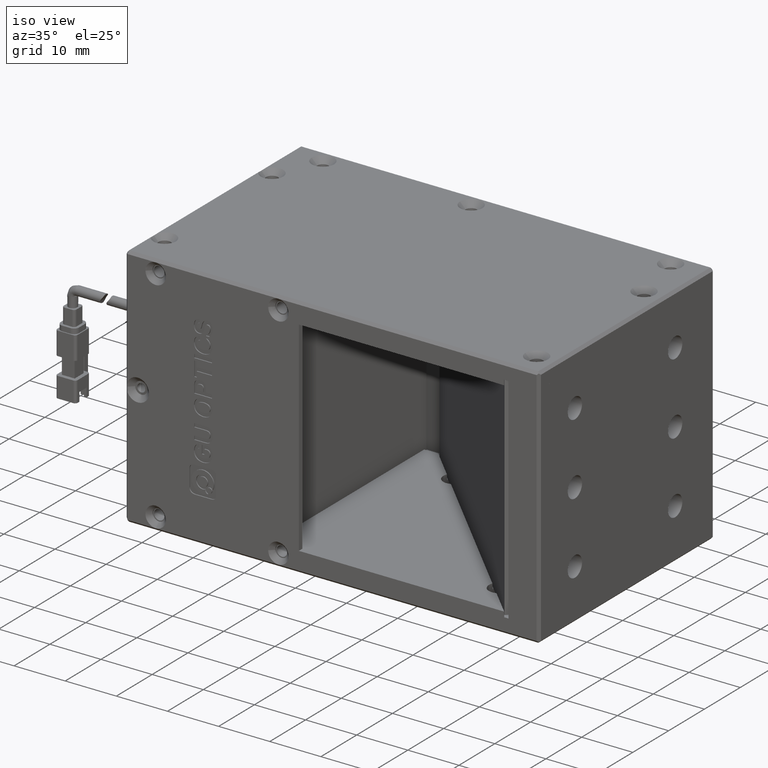
[diagram: clean part render]
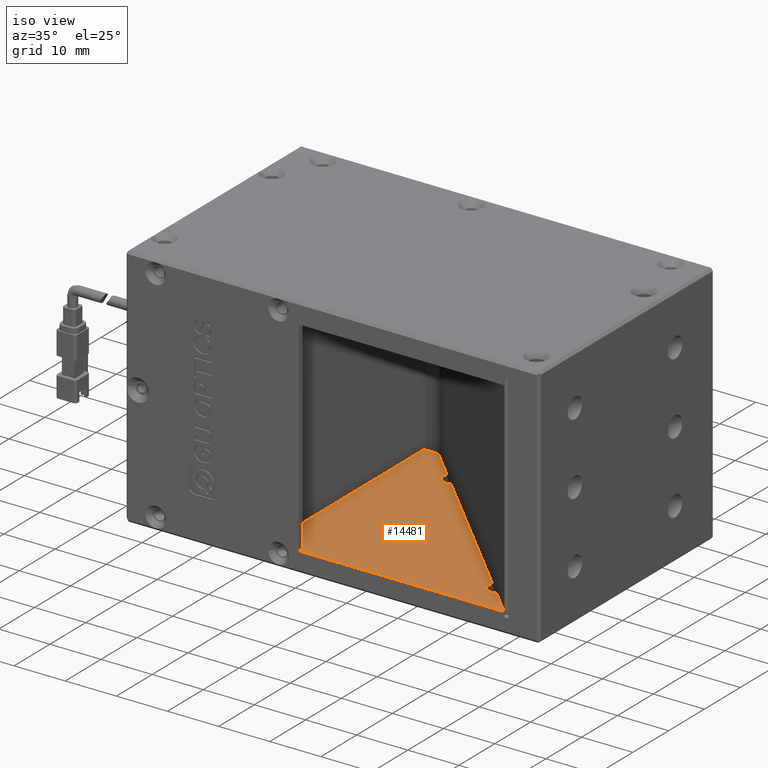
[diagram: same view with one face highlighted and labeled with its STEP entity id]
A machine part, iso view. The second image highlights one B-rep face of the part: STEP entity #14481.
In plain terms, the highlighted planar face has unit normal (0, 0, 1).
Its self-contained STEP definition (entity closure, byte-faithful):
#31 = VERTEX_POINT ( 'NONE', #23974 ) ;
#471 = CARTESIAN_POINT ( 'NONE',  ( -13.37937951257048200, 34.74734783202031700, -36.00000000000501600 ) ) ;
#594 = DIRECTION ( 'NONE',  ( 1.000000000000000000, 0.0000000000000000000, 0.0000000000000000000 ) ) ;
#1209 = DIRECTION ( 'NONE',  ( 1.000000000000000000, 0.0000000000000000000, 0.0000000000000000000 ) ) ;
#1368 = DIRECTION ( 'NONE',  ( 0.0000000000000000000, -0.0000000000000000000, 1.000000000000000000 ) ) ;
#1618 = AXIS2_PLACEMENT_3D ( 'NONE', #5779, #21531, #8021 ) ;
#2473 = EDGE_CURVE ( 'NONE', #31, #20307, #26004, .T. ) ;
#3189 = EDGE_CURVE ( 'NONE', #9928, #22151, #15767, .T. ) ;
#3231 = EDGE_CURVE ( 'NONE', #10380, #20307, #12084, .T. ) ;
#3276 = DIRECTION ( 'NONE',  ( -1.000000000000000000, -0.0000000000000000000, -0.0000000000000000000 ) ) ;
#4540 = CARTESIAN_POINT ( 'NONE',  ( 27.10521329404999600, -5.737244974597497400, -36.00000000000501600 ) ) ;
#5288 = EDGE_CURVE ( 'NONE', #26017, #10380, #8196, .T. ) ;
#5416 = CARTESIAN_POINT ( 'NONE',  ( -14.76014069702499900, 34.74734783202000400, -36.00000000000501600 ) ) ;
#5458 = EDGE_CURVE ( 'NONE', #23581, #5538, #29014, .T. ) ;
#5538 = VERTEX_POINT ( 'NONE', #17302 ) ;
#5615 = VECTOR ( 'NONE', #26086, 1000.000000000000000 ) ;
#5779 = CARTESIAN_POINT ( 'NONE',  ( 23.80912512634000000, -1.380496635109999900, -36.00000000000481700 ) ) ;
#5968 = VECTOR ( 'NONE', #23247, 1000.000000000000000 ) ;
#6107 = VECTOR ( 'NONE', #20294, 1000.000000000000100 ) ;
#7216 = CARTESIAN_POINT ( 'NONE',  ( -10.55504017108500000, 31.92300849053499700, -36.00000000000501600 ) ) ;
#7471 = DIRECTION ( 'NONE',  ( 0.0000000000000000000, -0.0000000000000000000, 1.000000000000000000 ) ) ;
#7500 = ORIENTED_EDGE ( 'NONE', *, *, #9625, .F. ) ;
#7581 = AXIS2_PLACEMENT_3D ( 'NONE', #28165, #14677, #1209 ) ;
#8021 = DIRECTION ( 'NONE',  ( 1.000000000000000000, 0.0000000000000000000, 0.0000000000000000000 ) ) ;
#8070 = EDGE_CURVE ( 'NONE', #17552, #9928, #17299, .T. ) ;
#8196 = LINE ( 'NONE', #16523, #19482 ) ;
#8851 = DIRECTION ( 'NONE',  ( -0.0000000000000000000, -1.000000000000000000, -0.0000000000000000000 ) ) ;
#9231 = EDGE_LOOP ( 'NONE', ( #14860, #28542, #15130, #25471, #7500, #11623, #26703, #14700, #28738, #12173, #15900, #24968 ) ) ;
#9338 = VERTEX_POINT ( 'NONE', #17686 ) ;
#9625 = EDGE_CURVE ( 'NONE', #5538, #14004, #20250, .T. ) ;
#9654 = VECTOR ( 'NONE', #20716, 1000.000000000000100 ) ;
#9928 = VERTEX_POINT ( 'NONE', #11019 ) ;
#10380 = VERTEX_POINT ( 'NONE', #21705 ) ;
#10528 = VERTEX_POINT ( 'NONE', #13263 ) ;
#10751 = VECTOR ( 'NONE', #28458, 1000.000000000000000 ) ;
#10905 = LINE ( 'NONE', #12610, #5615 ) ;
#11019 = CARTESIAN_POINT ( 'NONE',  ( -16.14090188147999400, 34.74734783202000400, -36.00000000000501600 ) ) ;
#11292 = VECTOR ( 'NONE', #3276, 1000.000000000000000 ) ;
#11623 = ORIENTED_EDGE ( 'NONE', *, *, #5458, .F. ) ;
#11948 = LINE ( 'NONE', #14216, #5968 ) ;
#11999 = CIRCLE ( 'NONE', #27626, 2.000000000000001800 ) ;
#12084 = LINE ( 'NONE', #4540, #6107 ) ;
#12173 = ORIENTED_EDGE ( 'NONE', *, *, #18849, .T. ) ;
#12259 = CARTESIAN_POINT ( 'NONE',  ( -16.14090188148000100, -7.252652167982004600, -36.00000000000500900 ) ) ;
#12610 = CARTESIAN_POINT ( 'NONE',  ( -27.54090188148199700, -7.252652167982001100, -36.00000000000500200 ) ) ;
#13263 = CARTESIAN_POINT ( 'NONE',  ( 21.96778398023516100, -0.5998156607846565300, -36.00000000000481700 ) ) ;
#14004 = VERTEX_POINT ( 'NONE', #16869 ) ;
#14052 = DIRECTION ( 'NONE',  ( 0.0000000000000000000, -0.0000000000000000000, 1.000000000000000000 ) ) ;
#14216 = CARTESIAN_POINT ( 'NONE',  ( 21.96778398023754200, -0.5998156607815978700, -36.00000000000000700 ) ) ;
#14481 = ADVANCED_FACE ( 'NONE', ( #24787 ), #16840, .T. ) ;
#14677 = DIRECTION ( 'NONE',  ( 0.0000000000000000000, 0.0000000000000000000, 1.000000000000000000 ) ) ;
#14700 = ORIENTED_EDGE ( 'NONE', *, *, #8070, .T. ) ;
#14841 = CARTESIAN_POINT ( 'NONE',  ( -5.889359683497001900, 28.31798817472999700, -36.00000000000481700 ) ) ;
#14860 = ORIENTED_EDGE ( 'NONE', *, *, #3231, .T. ) ;
#14921 = EDGE_CURVE ( 'NONE', #10528, #31, #11999, .T. ) ;
#15130 = ORIENTED_EDGE ( 'NONE', *, *, #14921, .F. ) ;
#15652 = LINE ( 'NONE', #7216, #9654 ) ;
#15767 = LINE ( 'NONE', #22368, #27049 ) ;
#15900 = ORIENTED_EDGE ( 'NONE', *, *, #25551, .T. ) ;
#16041 = EDGE_CURVE ( 'NONE', #10528, #14004, #11948, .T. ) ;
#16523 = CARTESIAN_POINT ( 'NONE',  ( 12.70909811852000200, -8.252652167982001100, -36.00000000000480300 ) ) ;
#16840 = PLANE ( 'NONE',  #7581 ) ;
#16869 = CARTESIAN_POINT ( 'NONE',  ( -5.108678709171226000, 26.47664702862898200, -36.00000000000240900 ) ) ;
#17109 = DIRECTION ( 'NONE',  ( 1.000000000000000000, 0.0000000000000000000, 0.0000000000000000000 ) ) ;
#17299 = LINE ( 'NONE', #5416, #11292 ) ;
#17302 = CARTESIAN_POINT ( 'NONE',  ( -7.889359683497003700, 28.31798817472999700, -36.00000000000481700 ) ) ;
#17552 = VERTEX_POINT ( 'NONE', #471 ) ;
#17686 = CARTESIAN_POINT ( 'NONE',  ( -10.54090188148275200, -7.252652167981970000, -36.00000000000277800 ) ) ;
#18794 = DIRECTION ( 'NONE',  ( 1.000000000000000000, -0.0000000000000000000, -0.0000000000000000000 ) ) ;
#18849 = EDGE_CURVE ( 'NONE', #22151, #9338, #10905, .T. ) ;
#19482 = VECTOR ( 'NONE', #18794, 1000.000000000000000 ) ;
#20250 = CIRCLE ( 'NONE', #28895, 2.000000000000002700 ) ;
#20294 = DIRECTION ( 'NONE',  ( -0.7071067811864804000, 0.7071067811866146300, -0.0000000000000000000 ) ) ;
#20307 = VERTEX_POINT ( 'NONE', #24860 ) ;
#20716 = DIRECTION ( 'NONE',  ( -0.7071067811865479100, 0.7071067811865470200, -0.0000000000000000000 ) ) ;
#20972 = CARTESIAN_POINT ( 'NONE',  ( -5.889359683497001900, 28.31798817472999700, -36.00000000000481700 ) ) ;
#21531 = DIRECTION ( 'NONE',  ( 0.0000000000000000000, -0.0000000000000000000, 1.000000000000000000 ) ) ;
#21658 = CARTESIAN_POINT ( 'NONE',  ( -10.54090188148040900, 13.24734783201900300, -36.00000000000000700 ) ) ;
#21705 = CARTESIAN_POINT ( 'NONE',  ( 29.62062048743483100, -8.252652167982164500, -36.00000000000487400 ) ) ;
#22151 = VERTEX_POINT ( 'NONE', #12259 ) ;
#22368 = CARTESIAN_POINT ( 'NONE',  ( -16.14090188148000100, 13.74734783201899900, -36.00000000000501600 ) ) ;
#22649 = EDGE_CURVE ( 'NONE', #23581, #17552, #15652, .T. ) ;
#23229 = DIRECTION ( 'NONE',  ( 1.000000000000000000, 0.0000000000000000000, 0.0000000000000000000 ) ) ;
#23247 = DIRECTION ( 'NONE',  ( -0.7071067811865097100, 0.7071067811865854300, 0.0000000000000000000 ) ) ;
#23558 = AXIS2_PLACEMENT_3D ( 'NONE', #14841, #1368, #17109 ) ;
#23581 = VERTEX_POINT ( 'NONE', #24912 ) ;
#23974 = CARTESIAN_POINT ( 'NONE',  ( 21.80912512634000000, -1.380496635109999600, -36.00000000000481700 ) ) ;
#24787 = FACE_OUTER_BOUND ( 'NONE', #9231, .T. ) ;
#24860 = CARTESIAN_POINT ( 'NONE',  ( 24.58980610066422700, -3.221837781211990500, -36.00000000000481700 ) ) ;
#24912 = CARTESIAN_POINT ( 'NONE',  ( -7.730700829600386300, 29.09866914905038400, -36.00000000000491700 ) ) ;
#24968 = ORIENTED_EDGE ( 'NONE', *, *, #5288, .T. ) ;
#25471 = ORIENTED_EDGE ( 'NONE', *, *, #16041, .T. ) ;
#25551 = EDGE_CURVE ( 'NONE', #9338, #26017, #28024, .T. ) ;
#25856 = CARTESIAN_POINT ( 'NONE',  ( -10.54090188148013500, -8.252652167982002900, -36.00000000000320500 ) ) ;
#26004 = CIRCLE ( 'NONE', #1618, 2.000000000000001800 ) ;
#26017 = VERTEX_POINT ( 'NONE', #25856 ) ;
#26086 = DIRECTION ( 'NONE',  ( 1.000000000000000000, -0.0000000000000000000, -0.0000000000000000000 ) ) ;
#26703 = ORIENTED_EDGE ( 'NONE', *, *, #22649, .T. ) ;
#27049 = VECTOR ( 'NONE', #8851, 1000.000000000000000 ) ;
#27555 = CARTESIAN_POINT ( 'NONE',  ( 23.80912512634000000, -1.380496635109999900, -36.00000000000481700 ) ) ;
#27626 = AXIS2_PLACEMENT_3D ( 'NONE', #27555, #14052, #594 ) ;
#28024 = LINE ( 'NONE', #21658, #10751 ) ;
#28165 = CARTESIAN_POINT ( 'NONE',  ( -17.05613232886000200, -9.112652167982000500, -36.00000000000000700 ) ) ;
#28458 = DIRECTION ( 'NONE',  ( -0.0000000000000000000, -1.000000000000000000, -0.0000000000000000000 ) ) ;
#28542 = ORIENTED_EDGE ( 'NONE', *, *, #2473, .F. ) ;
#28738 = ORIENTED_EDGE ( 'NONE', *, *, #3189, .T. ) ;
#28895 = AXIS2_PLACEMENT_3D ( 'NONE', #20972, #7471, #23229 ) ;
#29014 = CIRCLE ( 'NONE', #23558, 2.000000000000002700 ) ;